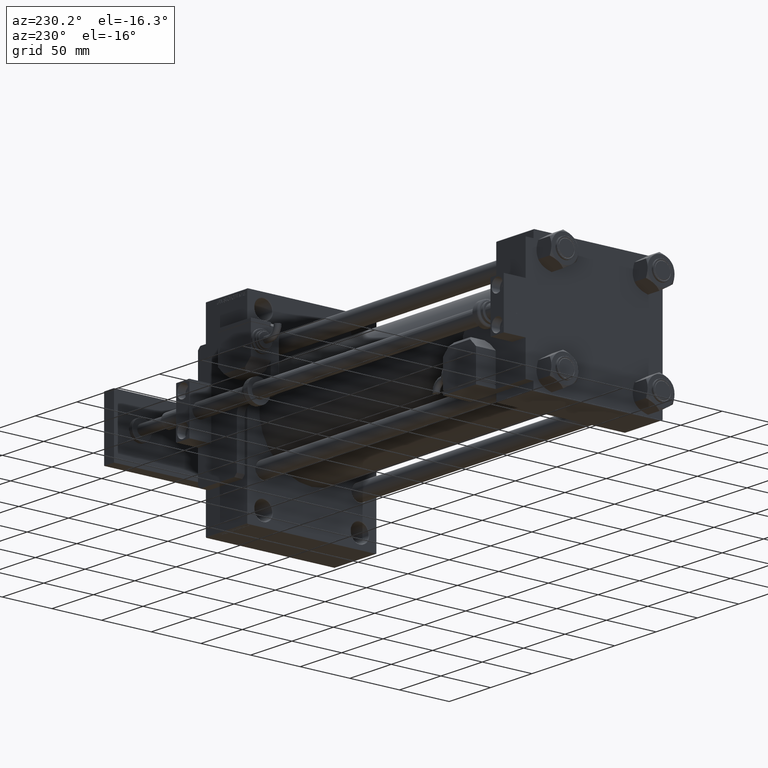
[diagram: clean part render]
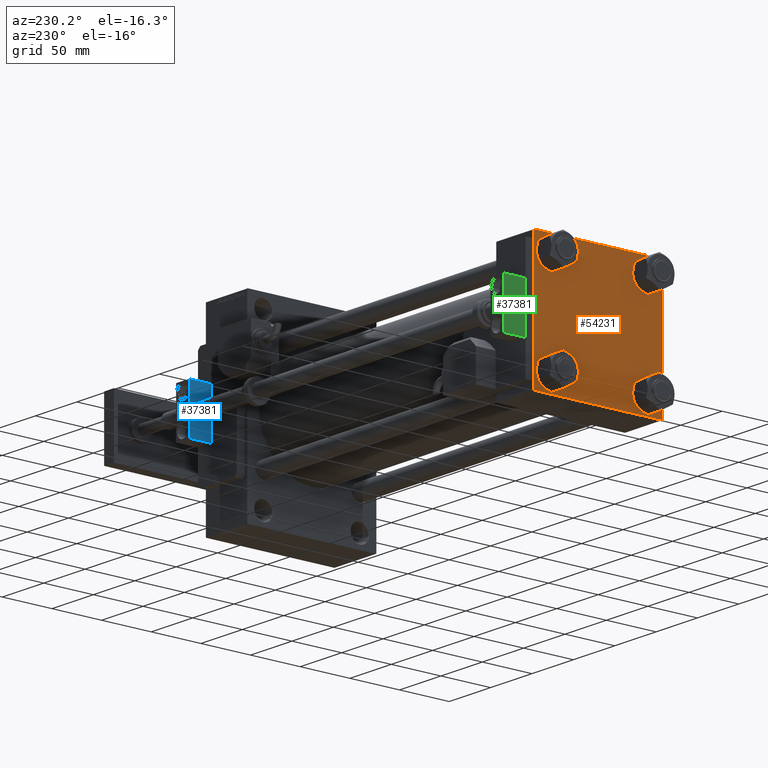
[diagram: same view with three faces highlighted in distinct colors, each labeled with its STEP entity id]
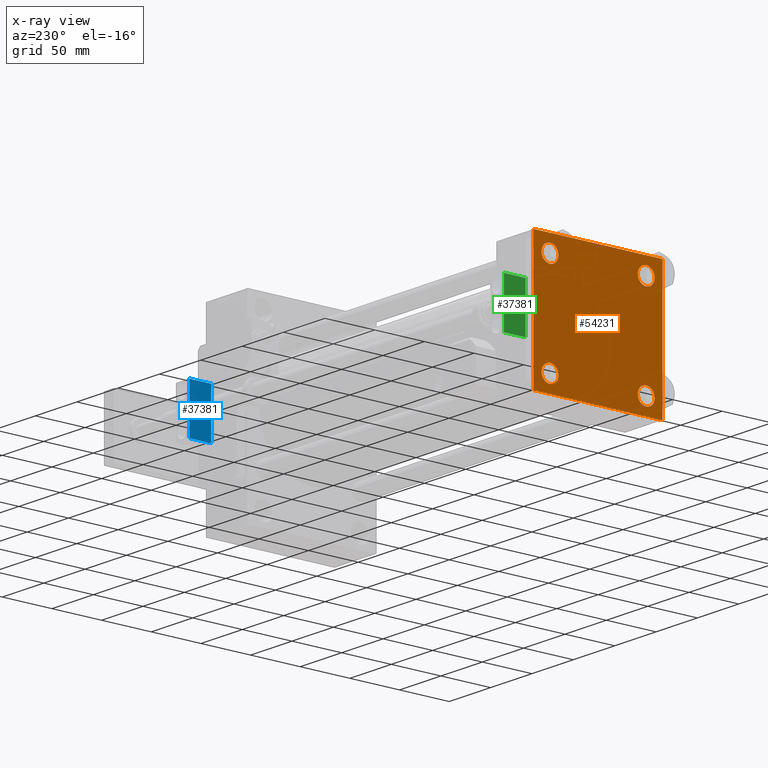
[diagram: x-ray of the same camera — body ghosted, the three highlighted faces saturated]
A machine part, auxiliary view with three faces highlighted in distinct colors.
The next image is the same camera in x-ray (body ghosted, the three faces saturated) — at least one of them is partly hidden behind the body in this view.
Their STEP definitions:

[orange] entity #54231 — the highlighted planar face has unit normal (-1, 0, 0).
#923 = PLANE ( 'NONE',  #32406 ) ;
#1405 = DIRECTION ( 'NONE',  ( 0.000000000000000000, 0.000000000000000000, -1.000000000000000000 ) ) ;
#1786 = VERTEX_POINT ( 'NONE', #21455 ) ;
#1964 = AXIS2_PLACEMENT_3D ( 'NONE', #4716, #47086, #8387 ) ;
#2260 = ORIENTED_EDGE ( 'NONE', *, *, #48489, .T. ) ;
#2769 = ORIENTED_EDGE ( 'NONE', *, *, #17592, .T. ) ;
#2823 = CARTESIAN_POINT ( 'NONE',  ( 0.000000000000000000, -64.49999999999994316, -65.00000000000001421 ) ) ;
#3712 = DIRECTION ( 'NONE',  ( 0.000000000000000000, 0.000000000000000000, 1.000000000000000000 ) ) ;
#3758 = AXIS2_PLACEMENT_3D ( 'NONE', #21603, #36130, #35587 ) ;
#4716 = CARTESIAN_POINT ( 'NONE',  ( 0.000000000000000000, -48.44999999999998153, 48.45000000000000995 ) ) ;
#5294 = DIRECTION ( 'NONE',  ( 1.000000000000000000, -0.000000000000000000, 0.000000000000000000 ) ) ;
#5639 = LINE ( 'NONE', #39867, #45554 ) ;
#5969 = ORIENTED_EDGE ( 'NONE', *, *, #38181, .F. ) ;
#5971 = DIRECTION ( 'NONE',  ( -0.000000000000000000, 0.000000000000000000, 1.000000000000000000 ) ) ;
#6319 = VECTOR ( 'NONE', #23756, 1000.000000000000114 ) ;
#6349 = DIRECTION ( 'NONE',  ( 0.000000000000000000, -0.7071067811865474617, 0.7071067811865474617 ) ) ;
#6363 = DIRECTION ( 'NONE',  ( 0.000000000000000000, 0.000000000000000000, -1.000000000000000000 ) ) ;
#7088 = CARTESIAN_POINT ( 'NONE',  ( 0.000000000000000000, 48.44999999999999574, -48.44999999999999574 ) ) ;
#7200 = EDGE_LOOP ( 'NONE', ( #10439, #20164 ) ) ;
#7549 = DIRECTION ( 'NONE',  ( -0.000000000000000000, 0.7071067811865672237, 0.7071067811865279218 ) ) ;
#7970 = CARTESIAN_POINT ( 'NONE',  ( 0.000000000000000000, 64.49999999999997158, 65.00000000000001421 ) ) ;
#8380 = EDGE_CURVE ( 'NONE', #1786, #31582, #5639, .T. ) ;
#8387 = DIRECTION ( 'NONE',  ( 0.000000000000000000, 0.000000000000000000, 1.000000000000000000 ) ) ;
#8471 = CIRCLE ( 'NONE', #39811, 8.500000000000007105 ) ;
#9118 = DIRECTION ( 'NONE',  ( -1.000000000000000000, 0.000000000000000000, -0.000000000000000000 ) ) ;
#9205 = CARTESIAN_POINT ( 'NONE',  ( 0.000000000000000000, -65.00000000000000000, 64.49999999999998579 ) ) ;
#9470 = VECTOR ( 'NONE', #46192, 1000.000000000000114 ) ;
#9598 = CARTESIAN_POINT ( 'NONE',  ( 0.000000000000000000, -48.44999999999998153, 39.95000000000000284 ) ) ;
#9741 = LINE ( 'NONE', #10821, #12906 ) ;
#9774 = ORIENTED_EDGE ( 'NONE', *, *, #33314, .T. ) ;
#9908 = VECTOR ( 'NONE', #6349, 1000.000000000000114 ) ;
#10439 = ORIENTED_EDGE ( 'NONE', *, *, #38922, .T. ) ;
#10710 = DIRECTION ( 'NONE',  ( 1.000000000000000000, -0.000000000000000000, 0.000000000000000000 ) ) ;
#10821 = CARTESIAN_POINT ( 'NONE',  ( 0.000000000000000000, 65.00000000000000000, -64.99999999999998579 ) ) ;
#10933 = ORIENTED_EDGE ( 'NONE', *, *, #30246, .T. ) ;
#11466 = VERTEX_POINT ( 'NONE', #20462 ) ;
#11951 = DIRECTION ( 'NONE',  ( 0.000000000000000000, 0.000000000000000000, 1.000000000000000000 ) ) ;
#12300 = LINE ( 'NONE', #29151, #17115 ) ;
#12505 = VECTOR ( 'NONE', #13805, 1000.000000000000000 ) ;
#12656 = EDGE_LOOP ( 'NONE', ( #43701, #10933 ) ) ;
#12906 = VECTOR ( 'NONE', #14472, 1000.000000000000000 ) ;
#13275 = VERTEX_POINT ( 'NONE', #25586 ) ;
#13561 = ORIENTED_EDGE ( 'NONE', *, *, #33464, .T. ) ;
#13741 = CARTESIAN_POINT ( 'NONE',  ( 0.000000000000000000, -65.00000000000000000, -64.49999999999995737 ) ) ;
#13805 = DIRECTION ( 'NONE',  ( 0.000000000000000000, -1.000000000000000000, -2.135044278125300850E-16 ) ) ;
#14118 = FACE_BOUND ( 'NONE', #15273, .T. ) ;
#14472 = DIRECTION ( 'NONE',  ( 0.000000000000000000, -1.000000000000000000, -2.135044278125300850E-16 ) ) ;
#15213 = EDGE_LOOP ( 'NONE', ( #48069, #13561 ) ) ;
#15273 = EDGE_LOOP ( 'NONE', ( #9774, #17873 ) ) ;
#15588 = CARTESIAN_POINT ( 'NONE',  ( 0.000000000000000000, -64.74999999999997158, -64.74999999999997158 ) ) ;
#15596 = VERTEX_POINT ( 'NONE', #31259 ) ;
#15900 = CIRCLE ( 'NONE', #55331, 8.500000000000007105 ) ;
#16032 = EDGE_CURVE ( 'NONE', #32558, #54964, #8471, .T. ) ;
#16435 = DIRECTION ( 'NONE',  ( 1.000000000000000000, -0.000000000000000000, 0.000000000000000000 ) ) ;
#17115 = VECTOR ( 'NONE', #7549, 1000.000000000000000 ) ;
#17592 = EDGE_CURVE ( 'NONE', #31582, #13275, #29086, .T. ) ;
#17873 = ORIENTED_EDGE ( 'NONE', *, *, #45852, .T. ) ;
#18203 = DIRECTION ( 'NONE',  ( 0.000000000000000000, 0.000000000000000000, 1.000000000000000000 ) ) ;
#18305 = CARTESIAN_POINT ( 'NONE',  ( 0.000000000000000000, -48.44999999999998153, -48.45000000000000995 ) ) ;
#18568 = LINE ( 'NONE', #22785, #12505 ) ;
#20164 = ORIENTED_EDGE ( 'NONE', *, *, #47243, .T. ) ;
#20462 = CARTESIAN_POINT ( 'NONE',  ( 0.000000000000000000, -48.44999999999998153, 56.95000000000001705 ) ) ;
#21455 = CARTESIAN_POINT ( 'NONE',  ( 0.000000000000000000, 65.00000000000000000, 64.49999999999998579 ) ) ;
#21603 = CARTESIAN_POINT ( 'NONE',  ( 0.000000000000000000, 48.44999999999999574, 48.44999999999999574 ) ) ;
#22785 = CARTESIAN_POINT ( 'NONE',  ( 0.000000000000000000, 65.00000000000000000, 65.00000000000001421 ) ) ;
#22790 = ORIENTED_EDGE ( 'NONE', *, *, #34566, .T. ) ;
#23148 = VERTEX_POINT ( 'NONE', #9205 ) ;
#23352 = EDGE_LOOP ( 'NONE', ( #55351, #2769, #22790, #31819, #5969, #37941, #49652, #2260 ) ) ;
#23501 = CIRCLE ( 'NONE', #3758, 8.500000000000007105 ) ;
#23756 = DIRECTION ( 'NONE',  ( 0.000000000000000000, 0.7071067811865474617, -0.7071067811865474617 ) ) ;
#24207 = CIRCLE ( 'NONE', #54636, 8.500000000000007105 ) ;
#24687 = DIRECTION ( 'NONE',  ( 1.000000000000000000, -0.000000000000000000, 0.000000000000000000 ) ) ;
#25425 = CARTESIAN_POINT ( 'NONE',  ( 0.000000000000000000, -48.44999999999998153, 48.45000000000000995 ) ) ;
#25586 = CARTESIAN_POINT ( 'NONE',  ( 0.000000000000000000, 64.49999999999997158, -64.99999999999998579 ) ) ;
#26607 = LINE ( 'NONE', #38119, #48965 ) ;
#26733 = EDGE_CURVE ( 'NONE', #53231, #15596, #46462, .T. ) ;
#27045 = CARTESIAN_POINT ( 'NONE',  ( 0.000000000000000000, 0.000000000000000000, 0.000000000000000000 ) ) ;
#27936 = CARTESIAN_POINT ( 'NONE',  ( 0.000000000000000000, 48.44999999999999574, 39.94999999999998863 ) ) ;
#28798 = LINE ( 'NONE', #53479, #6319 ) ;
#29086 = LINE ( 'NONE', #34143, #9470 ) ;
#29151 = CARTESIAN_POINT ( 'NONE',  ( -0.000000000000000000, -64.74999999999819522, 64.75000000000179057 ) ) ;
#30246 = EDGE_CURVE ( 'NONE', #15596, #53231, #42134, .T. ) ;
#31114 = CARTESIAN_POINT ( 'NONE',  ( 0.000000000000000000, 48.44999999999999574, 48.44999999999999574 ) ) ;
#31259 = CARTESIAN_POINT ( 'NONE',  ( 0.000000000000000000, 48.44999999999999574, -56.95000000000000284 ) ) ;
#31582 = VERTEX_POINT ( 'NONE', #53399 ) ;
#31819 = ORIENTED_EDGE ( 'NONE', *, *, #48425, .T. ) ;
#32406 = AXIS2_PLACEMENT_3D ( 'NONE', #27045, #9118, #5971 ) ;
#32558 = VERTEX_POINT ( 'NONE', #48708 ) ;
#33314 = EDGE_CURVE ( 'NONE', #11466, #55375, #51261, .T. ) ;
#33464 = EDGE_CURVE ( 'NONE', #54964, #32558, #23501, .T. ) ;
#33652 = CARTESIAN_POINT ( 'NONE',  ( 0.000000000000000000, -48.44999999999998153, -56.95000000000001705 ) ) ;
#34143 = CARTESIAN_POINT ( 'NONE',  ( 0.000000000000000000, 64.74999999999997158, -64.74999999999997158 ) ) ;
#34566 = EDGE_CURVE ( 'NONE', #13275, #48268, #9741, .T. ) ;
#35587 = DIRECTION ( 'NONE',  ( 0.000000000000000000, 0.000000000000000000, 1.000000000000000000 ) ) ;
#36130 = DIRECTION ( 'NONE',  ( 1.000000000000000000, -0.000000000000000000, 0.000000000000000000 ) ) ;
#36598 = AXIS2_PLACEMENT_3D ( 'NONE', #7088, #37105, #3712 ) ;
#36998 = VERTEX_POINT ( 'NONE', #13741 ) ;
#37105 = DIRECTION ( 'NONE',  ( 1.000000000000000000, -0.000000000000000000, 0.000000000000000000 ) ) ;
#37941 = ORIENTED_EDGE ( 'NONE', *, *, #49702, .T. ) ;
#38119 = CARTESIAN_POINT ( 'NONE',  ( 0.000000000000000000, -65.00000000000000000, 64.99999999999998579 ) ) ;
#38181 = EDGE_CURVE ( 'NONE', #23148, #36998, #26607, .T. ) ;
#38922 = EDGE_CURVE ( 'NONE', #53972, #49645, #15900, .T. ) ;
#39112 = VERTEX_POINT ( 'NONE', #48192 ) ;
#39340 = CIRCLE ( 'NONE', #42954, 8.500000000000007105 ) ;
#39811 = AXIS2_PLACEMENT_3D ( 'NONE', #31114, #5294, #18203 ) ;
#39867 = CARTESIAN_POINT ( 'NONE',  ( 0.000000000000000000, 65.00000000000000000, 65.00000000000001421 ) ) ;
#41030 = CARTESIAN_POINT ( 'NONE',  ( 0.000000000000000000, 48.44999999999999574, -39.94999999999998863 ) ) ;
#42134 = CIRCLE ( 'NONE', #53771, 8.500000000000007105 ) ;
#42954 = AXIS2_PLACEMENT_3D ( 'NONE', #25425, #16435, #11951 ) ;
#43624 = DIRECTION ( 'NONE',  ( 1.000000000000000000, -0.000000000000000000, 0.000000000000000000 ) ) ;
#43701 = ORIENTED_EDGE ( 'NONE', *, *, #26733, .T. ) ;
#44142 = FACE_BOUND ( 'NONE', #7200, .T. ) ;
#45426 = DIRECTION ( 'NONE',  ( 0.000000000000000000, 0.000000000000000000, 1.000000000000000000 ) ) ;
#45554 = VECTOR ( 'NONE', #1405, 1000.000000000000000 ) ;
#45852 = EDGE_CURVE ( 'NONE', #55375, #11466, #39340, .T. ) ;
#46158 = VERTEX_POINT ( 'NONE', #7970 ) ;
#46192 = DIRECTION ( 'NONE',  ( -0.000000000000000000, -0.7071067811865474617, -0.7071067811865474617 ) ) ;
#46462 = CIRCLE ( 'NONE', #36598, 8.500000000000007105 ) ;
#46476 = EDGE_CURVE ( 'NONE', #46158, #39112, #18568, .T. ) ;
#46722 = CARTESIAN_POINT ( 'NONE',  ( 0.000000000000000000, 48.44999999999999574, -48.44999999999999574 ) ) ;
#47086 = DIRECTION ( 'NONE',  ( 1.000000000000000000, -0.000000000000000000, 0.000000000000000000 ) ) ;
#47243 = EDGE_CURVE ( 'NONE', #49645, #53972, #24207, .T. ) ;
#47536 = FACE_BOUND ( 'NONE', #15213, .T. ) ;
#47600 = CARTESIAN_POINT ( 'NONE',  ( 0.000000000000000000, -48.44999999999998153, -39.95000000000000284 ) ) ;
#48069 = ORIENTED_EDGE ( 'NONE', *, *, #16032, .T. ) ;
#48192 = CARTESIAN_POINT ( 'NONE',  ( 0.000000000000000000, -64.49999999999997158, 64.99999999999998579 ) ) ;
#48268 = VERTEX_POINT ( 'NONE', #2823 ) ;
#48319 = DIRECTION ( 'NONE',  ( 0.000000000000000000, 0.000000000000000000, 1.000000000000000000 ) ) ;
#48425 = EDGE_CURVE ( 'NONE', #48268, #36998, #48980, .T. ) ;
#48489 = EDGE_CURVE ( 'NONE', #46158, #1786, #28798, .T. ) ;
#48708 = CARTESIAN_POINT ( 'NONE',  ( 0.000000000000000000, 48.44999999999999574, 56.95000000000000284 ) ) ;
#48965 = VECTOR ( 'NONE', #6363, 1000.000000000000000 ) ;
#48980 = LINE ( 'NONE', #15588, #9908 ) ;
#49645 = VERTEX_POINT ( 'NONE', #33652 ) ;
#49652 = ORIENTED_EDGE ( 'NONE', *, *, #46476, .F. ) ;
#49702 = EDGE_CURVE ( 'NONE', #23148, #39112, #12300, .T. ) ;
#51261 = CIRCLE ( 'NONE', #1964, 8.500000000000007105 ) ;
#51477 = DIRECTION ( 'NONE',  ( 0.000000000000000000, 0.000000000000000000, 1.000000000000000000 ) ) ;
#51743 = FACE_OUTER_BOUND ( 'NONE', #23352, .T. ) ;
#52558 = FACE_BOUND ( 'NONE', #12656, .T. ) ;
#53231 = VERTEX_POINT ( 'NONE', #41030 ) ;
#53399 = CARTESIAN_POINT ( 'NONE',  ( 0.000000000000000000, 65.00000000000000000, -64.49999999999995737 ) ) ;
#53479 = CARTESIAN_POINT ( 'NONE',  ( 0.000000000000000000, 64.74999999999998579, 64.74999999999998579 ) ) ;
#53771 = AXIS2_PLACEMENT_3D ( 'NONE', #46722, #43624, #51477 ) ;
#53972 = VERTEX_POINT ( 'NONE', #47600 ) ;
#54231 = ADVANCED_FACE ( 'NONE', ( #14118, #44142, #52558, #47536, #51743 ), #923, .T. ) ;
#54636 = AXIS2_PLACEMENT_3D ( 'NONE', #18305, #10710, #48319 ) ;
#54964 = VERTEX_POINT ( 'NONE', #27936 ) ;
#54970 = CARTESIAN_POINT ( 'NONE',  ( 0.000000000000000000, -48.44999999999998153, -48.45000000000000995 ) ) ;
#55331 = AXIS2_PLACEMENT_3D ( 'NONE', #54970, #24687, #45426 ) ;
#55351 = ORIENTED_EDGE ( 'NONE', *, *, #8380, .T. ) ;
#55375 = VERTEX_POINT ( 'NONE', #9598 ) ;

[blue] entity #37381 — the highlighted planar face has unit normal (1, 0, 0).
#1019 = LINE ( 'NONE', #7607, #9891 ) ;
#1298 = DIRECTION ( 'NONE',  ( 0.000000000000000000, 0.000000000000000000, 1.000000000000000000 ) ) ;
#1543 = CARTESIAN_POINT ( 'NONE',  ( -23.99999999999999645, 11.00000000000000000, -16.00000000000000000 ) ) ;
#2194 = ORIENTED_EDGE ( 'NONE', *, *, #27800, .F. ) ;
#4447 = DIRECTION ( 'NONE',  ( 1.000000000000000000, 0.000000000000000000, 0.000000000000000000 ) ) ;
#5873 = CARTESIAN_POINT ( 'NONE',  ( -23.99999999999999289, -10.99999999999999645, -16.00000000000000000 ) ) ;
#6481 = CIRCLE ( 'NONE', #33390, 7.000000000000000000 ) ;
#7129 = DIRECTION ( 'NONE',  ( 1.000000000000000000, 0.000000000000000000, -0.000000000000000000 ) ) ;
#7362 = VERTEX_POINT ( 'NONE', #49719 ) ;
#7607 = CARTESIAN_POINT ( 'NONE',  ( -23.99999999999999645, 11.00000000000000000, -16.00000000000000000 ) ) ;
#8171 = ORIENTED_EDGE ( 'NONE', *, *, #11322, .F. ) ;
#8462 = ORIENTED_EDGE ( 'NONE', *, *, #29868, .F. ) ;
#8802 = LINE ( 'NONE', #30945, #11525 ) ;
#9891 = VECTOR ( 'NONE', #29973, 1000.000000000000000 ) ;
#10007 = DIRECTION ( 'NONE',  ( -1.000000000000000000, 1.445602896647339410E-16, -0.000000000000000000 ) ) ;
#11060 = PLANE ( 'NONE',  #42710 ) ;
#11322 = EDGE_CURVE ( 'NONE', #31949, #49379, #27217, .T. ) ;
#11525 = VECTOR ( 'NONE', #30405, 1000.000000000000000 ) ;
#19112 = ORIENTED_EDGE ( 'NONE', *, *, #35129, .T. ) ;
#22437 = DIRECTION ( 'NONE',  ( 0.000000000000000000, 0.000000000000000000, 1.000000000000000000 ) ) ;
#24201 = VERTEX_POINT ( 'NONE', #45962 ) ;
#24358 = ORIENTED_EDGE ( 'NONE', *, *, #51822, .T. ) ;
#24731 = CARTESIAN_POINT ( 'NONE',  ( -23.99999999999999289, -10.99999999999999645, -16.00000000000000000 ) ) ;
#26518 = EDGE_CURVE ( 'NONE', #49379, #24201, #8802, .T. ) ;
#26876 = CARTESIAN_POINT ( 'NONE',  ( 0.000000000000000000, 0.000000000000000000, -16.00000000000000000 ) ) ;
#26928 = DIRECTION ( 'NONE',  ( 1.000000000000000000, 0.000000000000000000, 0.000000000000000000 ) ) ;
#27217 = LINE ( 'NONE', #5873, #47868 ) ;
#27661 = VECTOR ( 'NONE', #10007, 1000.000000000000000 ) ;
#27800 = EDGE_CURVE ( 'NONE', #24201, #31858, #40283, .T. ) ;
#29221 = CARTESIAN_POINT ( 'NONE',  ( 24.00000000000000000, -11.00000000000000000, -16.00000000000000000 ) ) ;
#29868 = EDGE_CURVE ( 'NONE', #31858, #31949, #1019, .T. ) ;
#29973 = DIRECTION ( 'NONE',  ( 1.577021341797097807E-16, -1.000000000000000000, 0.000000000000000000 ) ) ;
#30183 = CARTESIAN_POINT ( 'NONE',  ( -7.000000000000000000, 1.000000000000005329, -16.00000000000000000 ) ) ;
#30405 = DIRECTION ( 'NONE',  ( -1.577021341797098053E-16, 1.000000000000000000, -0.000000000000000000 ) ) ;
#30945 = CARTESIAN_POINT ( 'NONE',  ( 23.99999999999999645, 10.99999999999999289, -16.00000000000000000 ) ) ;
#31858 = VERTEX_POINT ( 'NONE', #47486 ) ;
#31949 = VERTEX_POINT ( 'NONE', #24731 ) ;
#32393 = FACE_OUTER_BOUND ( 'NONE', #50493, .T. ) ;
#33390 = AXIS2_PLACEMENT_3D ( 'NONE', #34757, #55237, #4447 ) ;
#33398 = ORIENTED_EDGE ( 'NONE', *, *, #26518, .F. ) ;
#34757 = CARTESIAN_POINT ( 'NONE',  ( 0.000000000000000000, 1.000000000000004441, -16.00000000000000000 ) ) ;
#35129 = EDGE_CURVE ( 'NONE', #47770, #7362, #39897, .T. ) ;
#35371 = EDGE_LOOP ( 'NONE', ( #24358, #19112 ) ) ;
#37381 = ADVANCED_FACE ( 'NONE', ( #48177, #32393 ), #11060, .F. ) ;
#39897 = CIRCLE ( 'NONE', #40815, 7.000000000000000000 ) ;
#40283 = LINE ( 'NONE', #1543, #27661 ) ;
#40815 = AXIS2_PLACEMENT_3D ( 'NONE', #47958, #22437, #26928 ) ;
#42710 = AXIS2_PLACEMENT_3D ( 'NONE', #26876, #1298, #7129 ) ;
#45962 = CARTESIAN_POINT ( 'NONE',  ( 23.99999999999999645, 10.99999999999999289, -16.00000000000000000 ) ) ;
#47486 = CARTESIAN_POINT ( 'NONE',  ( -23.99999999999999645, 11.00000000000000000, -16.00000000000000000 ) ) ;
#47770 = VERTEX_POINT ( 'NONE', #30183 ) ;
#47868 = VECTOR ( 'NONE', #48788, 1000.000000000000000 ) ;
#47958 = CARTESIAN_POINT ( 'NONE',  ( 0.000000000000000000, 1.000000000000004441, -16.00000000000000000 ) ) ;
#48177 = FACE_BOUND ( 'NONE', #35371, .T. ) ;
#48788 = DIRECTION ( 'NONE',  ( 1.000000000000000000, -7.228014483236697048E-17, 0.000000000000000000 ) ) ;
#49379 = VERTEX_POINT ( 'NONE', #29221 ) ;
#49719 = CARTESIAN_POINT ( 'NONE',  ( 7.000000000000000000, 1.000000000000004441, -16.00000000000000000 ) ) ;
#50493 = EDGE_LOOP ( 'NONE', ( #33398, #8171, #8462, #2194 ) ) ;
#51822 = EDGE_CURVE ( 'NONE', #7362, #47770, #6481, .T. ) ;
#55237 = DIRECTION ( 'NONE',  ( 0.000000000000000000, 0.000000000000000000, 1.000000000000000000 ) ) ;

[green] entity #37381 — the highlighted planar face has unit normal (1, 0, 0).
#1019 = LINE ( 'NONE', #7607, #9891 ) ;
#1298 = DIRECTION ( 'NONE',  ( 0.000000000000000000, 0.000000000000000000, 1.000000000000000000 ) ) ;
#1543 = CARTESIAN_POINT ( 'NONE',  ( -23.99999999999999645, 11.00000000000000000, -16.00000000000000000 ) ) ;
#2194 = ORIENTED_EDGE ( 'NONE', *, *, #27800, .F. ) ;
#4447 = DIRECTION ( 'NONE',  ( 1.000000000000000000, 0.000000000000000000, 0.000000000000000000 ) ) ;
#5873 = CARTESIAN_POINT ( 'NONE',  ( -23.99999999999999289, -10.99999999999999645, -16.00000000000000000 ) ) ;
#6481 = CIRCLE ( 'NONE', #33390, 7.000000000000000000 ) ;
#7129 = DIRECTION ( 'NONE',  ( 1.000000000000000000, 0.000000000000000000, -0.000000000000000000 ) ) ;
#7362 = VERTEX_POINT ( 'NONE', #49719 ) ;
#7607 = CARTESIAN_POINT ( 'NONE',  ( -23.99999999999999645, 11.00000000000000000, -16.00000000000000000 ) ) ;
#8171 = ORIENTED_EDGE ( 'NONE', *, *, #11322, .F. ) ;
#8462 = ORIENTED_EDGE ( 'NONE', *, *, #29868, .F. ) ;
#8802 = LINE ( 'NONE', #30945, #11525 ) ;
#9891 = VECTOR ( 'NONE', #29973, 1000.000000000000000 ) ;
#10007 = DIRECTION ( 'NONE',  ( -1.000000000000000000, 1.445602896647339410E-16, -0.000000000000000000 ) ) ;
#11060 = PLANE ( 'NONE',  #42710 ) ;
#11322 = EDGE_CURVE ( 'NONE', #31949, #49379, #27217, .T. ) ;
#11525 = VECTOR ( 'NONE', #30405, 1000.000000000000000 ) ;
#19112 = ORIENTED_EDGE ( 'NONE', *, *, #35129, .T. ) ;
#22437 = DIRECTION ( 'NONE',  ( 0.000000000000000000, 0.000000000000000000, 1.000000000000000000 ) ) ;
#24201 = VERTEX_POINT ( 'NONE', #45962 ) ;
#24358 = ORIENTED_EDGE ( 'NONE', *, *, #51822, .T. ) ;
#24731 = CARTESIAN_POINT ( 'NONE',  ( -23.99999999999999289, -10.99999999999999645, -16.00000000000000000 ) ) ;
#26518 = EDGE_CURVE ( 'NONE', #49379, #24201, #8802, .T. ) ;
#26876 = CARTESIAN_POINT ( 'NONE',  ( 0.000000000000000000, 0.000000000000000000, -16.00000000000000000 ) ) ;
#26928 = DIRECTION ( 'NONE',  ( 1.000000000000000000, 0.000000000000000000, 0.000000000000000000 ) ) ;
#27217 = LINE ( 'NONE', #5873, #47868 ) ;
#27661 = VECTOR ( 'NONE', #10007, 1000.000000000000000 ) ;
#27800 = EDGE_CURVE ( 'NONE', #24201, #31858, #40283, .T. ) ;
#29221 = CARTESIAN_POINT ( 'NONE',  ( 24.00000000000000000, -11.00000000000000000, -16.00000000000000000 ) ) ;
#29868 = EDGE_CURVE ( 'NONE', #31858, #31949, #1019, .T. ) ;
#29973 = DIRECTION ( 'NONE',  ( 1.577021341797097807E-16, -1.000000000000000000, 0.000000000000000000 ) ) ;
#30183 = CARTESIAN_POINT ( 'NONE',  ( -7.000000000000000000, 1.000000000000005329, -16.00000000000000000 ) ) ;
#30405 = DIRECTION ( 'NONE',  ( -1.577021341797098053E-16, 1.000000000000000000, -0.000000000000000000 ) ) ;
#30945 = CARTESIAN_POINT ( 'NONE',  ( 23.99999999999999645, 10.99999999999999289, -16.00000000000000000 ) ) ;
#31858 = VERTEX_POINT ( 'NONE', #47486 ) ;
#31949 = VERTEX_POINT ( 'NONE', #24731 ) ;
#32393 = FACE_OUTER_BOUND ( 'NONE', #50493, .T. ) ;
#33390 = AXIS2_PLACEMENT_3D ( 'NONE', #34757, #55237, #4447 ) ;
#33398 = ORIENTED_EDGE ( 'NONE', *, *, #26518, .F. ) ;
#34757 = CARTESIAN_POINT ( 'NONE',  ( 0.000000000000000000, 1.000000000000004441, -16.00000000000000000 ) ) ;
#35129 = EDGE_CURVE ( 'NONE', #47770, #7362, #39897, .T. ) ;
#35371 = EDGE_LOOP ( 'NONE', ( #24358, #19112 ) ) ;
#37381 = ADVANCED_FACE ( 'NONE', ( #48177, #32393 ), #11060, .F. ) ;
#39897 = CIRCLE ( 'NONE', #40815, 7.000000000000000000 ) ;
#40283 = LINE ( 'NONE', #1543, #27661 ) ;
#40815 = AXIS2_PLACEMENT_3D ( 'NONE', #47958, #22437, #26928 ) ;
#42710 = AXIS2_PLACEMENT_3D ( 'NONE', #26876, #1298, #7129 ) ;
#45962 = CARTESIAN_POINT ( 'NONE',  ( 23.99999999999999645, 10.99999999999999289, -16.00000000000000000 ) ) ;
#47486 = CARTESIAN_POINT ( 'NONE',  ( -23.99999999999999645, 11.00000000000000000, -16.00000000000000000 ) ) ;
#47770 = VERTEX_POINT ( 'NONE', #30183 ) ;
#47868 = VECTOR ( 'NONE', #48788, 1000.000000000000000 ) ;
#47958 = CARTESIAN_POINT ( 'NONE',  ( 0.000000000000000000, 1.000000000000004441, -16.00000000000000000 ) ) ;
#48177 = FACE_BOUND ( 'NONE', #35371, .T. ) ;
#48788 = DIRECTION ( 'NONE',  ( 1.000000000000000000, -7.228014483236697048E-17, 0.000000000000000000 ) ) ;
#49379 = VERTEX_POINT ( 'NONE', #29221 ) ;
#49719 = CARTESIAN_POINT ( 'NONE',  ( 7.000000000000000000, 1.000000000000004441, -16.00000000000000000 ) ) ;
#50493 = EDGE_LOOP ( 'NONE', ( #33398, #8171, #8462, #2194 ) ) ;
#51822 = EDGE_CURVE ( 'NONE', #7362, #47770, #6481, .T. ) ;
#55237 = DIRECTION ( 'NONE',  ( 0.000000000000000000, 0.000000000000000000, 1.000000000000000000 ) ) ;